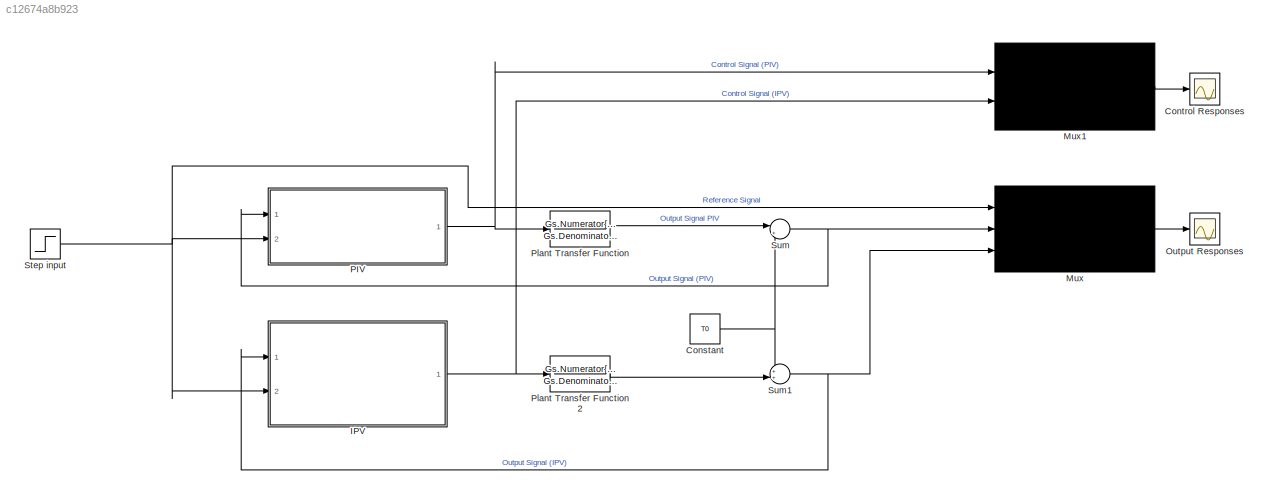
MODEL slx_c12674a8b923
KIND model
CONFIG AbsTol = auto
CONFIG EnableMultiTasking = off
CONFIG FixedStep = auto
CONFIG MaxStep = auto
CONFIG MinStep = auto
CONFIG RelTol = 1e-3
CONFIG SampleTimeConstraint = Unconstrained
CONFIG Solver = VariableStepAuto
CONFIG SolverName = VariableStepAuto
CONFIG StartTime = 0.0
CONFIG StopTime = simulation_time
BLOCK [Constant] Constant
  Value = T0
BLOCK [Scope] Control Responses
  Floating = off
  NumInputPorts = 1
  Ports = [1]
  ScopeSpecificationString = Simulink.scopes.TimeScopeBlockCfg('CurrentConfiguration', extmgr.ConfigurationSet(extmgr.Configuration('Core','General UI',true),extmgr.Configuration('Core','Source UI',true),extmgr.Configuration('Sources','WiredSimulink',true,'DataLogging',true,'DataLoggingVariableName','ControlSignal','DataLoggingSaveFormat','StructureWithTime'),extmgr.Configuration('Visuals','Time Domain',true,'SerializedDispla...<+1504ch>
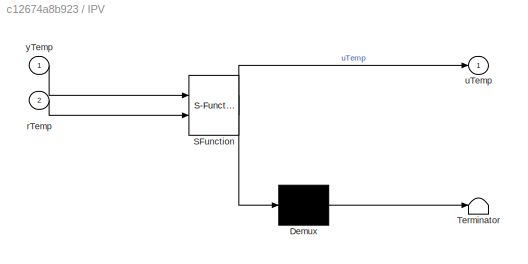
BLOCK [SubSystem] IPV 
  ErrorFcn = Stateflow.Translate.translate
  PermitHierarchicalResolution = ExplicitOnly
  Ports = [2, 1]
  RequestExecContextInheritance = off
  SFBlockType = MATLAB Function
  TreatAsAtomicUnit = on
BLOCK [Demux] IPV / Demux 
  Outputs = 1
  Ports = [1, 1]
BLOCK [S-Function] IPV / SFunction 
  EnableBusSupport = on
  FunctionName = sf_sfun
  Parameters = Kc,Umax,Umin,deltat,tauI
  PortCounts = [2 2]
  Ports = [2, 2]
  SFcnIsStateOwnerBlock = off
  SFunctionDeploymentMode = off
  Tag = Stateflow S-Function 1
BLOCK [Terminator] IPV / Terminator 
BLOCK [Inport] IPV /rTemp
  IconDisplay = Port number
  Port = 2
BLOCK [Outport] IPV /uTemp
  IconDisplay = Port number
BLOCK [Inport] IPV /yTemp
  IconDisplay = Port number
BLOCK [Mux] Mux
  DisplayOption = signals
  Inputs = 3
  Ports = [3, 1]
BLOCK [Mux] Mux1
  DisplayOption = signals
  Inputs = 2
  Ports = [2, 1]
BLOCK [Scope] Output Responses
  Floating = off
  NumInputPorts = 1
  Ports = [1]
  ScopeSpecificationString = Simulink.scopes.TimeScopeBlockCfg('CurrentConfiguration', extmgr.ConfigurationSet(extmgr.Configuration('Core','General UI',true),extmgr.Configuration('Core','Source UI',true),extmgr.Configuration('Sources','WiredSimulink',true,'DataLogging',true,'DataLoggingVariableName','Responses','DataLoggingSaveFormat','StructureWithTime'),extmgr.Configuration('Visuals','Time Domain',true,'SerializedDisplays',...<+1630ch>
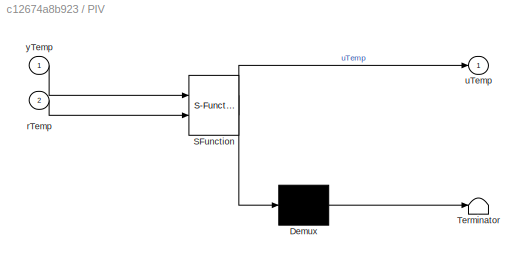
BLOCK [SubSystem] PIV 
  ErrorFcn = Stateflow.Translate.translate
  PermitHierarchicalResolution = ExplicitOnly
  Ports = [2, 1]
  RequestExecContextInheritance = off
  SFBlockType = MATLAB Function
  TreatAsAtomicUnit = on
BLOCK [Demux] PIV / Demux 
  Outputs = 1
  Ports = [1, 1]
BLOCK [S-Function] PIV / SFunction 
  EnableBusSupport = on
  FunctionName = sf_sfun
  Parameters = Kc,Umax,Umin,deltat,tauI
  PortCounts = [2 2]
  Ports = [2, 2]
  SFcnIsStateOwnerBlock = off
  SFunctionDeploymentMode = off
  Tag = Stateflow S-Function 2
BLOCK [Terminator] PIV / Terminator 
BLOCK [Inport] PIV /rTemp
  IconDisplay = Port number
  Port = 2
BLOCK [Outport] PIV /uTemp
  IconDisplay = Port number
BLOCK [Inport] PIV /yTemp
  IconDisplay = Port number
BLOCK [TransferFcn] Plant Transfer Function
  Denominator = Gs.Denominator{1,1}
  Numerator = Gs.Numerator{1,1}
BLOCK [TransferFcn] Plant Transfer Function 2
  Denominator = Gs.Denominator{1,1}
  Numerator = Gs.Numerator{1,1}
BLOCK [Step] Step input
  After = step_amplitude
  SampleTime = sample_time
  Time = 0
BLOCK [Sum] Sum
  IconShape = round
  InputSameDT = off
  Inputs = |++
  OutDataTypeStr = Inherit: Inherit via internal rule
  Ports = [2, 1]
  SaturateOnIntegerOverflow = off
BLOCK [Sum] Sum1
  IconShape = round
  InputSameDT = off
  Inputs = ++|
  OutDataTypeStr = Inherit: Inherit via internal rule
  Ports = [2, 1]
  SaturateOnIntegerOverflow = off
NET Constant:1 -> Sum1:1, Sum:2
NET IPV :1 -> Mux1:2, Plant Transfer Function 2:1
LINE Mux1:1 -> Control Responses:1
LINE Mux:1 -> Output Responses:1
NET PIV :1 -> Mux1:1, Plant Transfer Function:1
LINE Plant Transfer Function 2:1 -> Sum1:2
LINE Plant Transfer Function:1 -> Sum:1
NET Step input:1 -> IPV :2, Mux:1, PIV :2
NET Sum1:1 -> IPV :1, Mux:3
NET Sum:1 -> Mux:2, PIV :1
note: NET lines group one-source signal fan-out (src -> all destinations, sorted); 1:1 wires keep LINE
CHART IPV
 states=1 transitions=1
  STATE_LABEL 'eML_blk_kernel()'
  STATE_LABEL 'SCRIPT:\nfunction uTemp = IPV(yTemp,rTemp,Kc, tauI, deltat, Umin, Umax)\n    persistent uPast \n    if isempty(uPast)\n        uPast=0;\n    end\n    \n    persistent yPast \n    if isempty(yPast)\n        yPast=0; \n    end\n    \n    persistent uDPast \n    if isempty(uDPast)\n        uDPast=0;\n    end\n    \n    persistent rPast \n    if isempty(rPast)\n        rPast=0;\n    end\n   \n    uTemp = uPast+...\n        ...<+230ch>'
CHART PIV
 states=1 transitions=1
  STATE_LABEL 'eML_blk_kernel()'
  STATE_LABEL 'SCRIPT:\nfunction uTemp = PIV(yTemp,rTemp,Kc, tauI, deltat, Umin, Umax)\n    persistent uPast \n    if isempty(uPast)\n        uPast=0;\n    end\n    \n    persistent yPast \n    if isempty(yPast)\n        yPast=0; \n    end\n    \n    persistent uDPast \n    if isempty(uDPast)\n        uDPast=0;\n    end\n    \n    persistent rPast \n    if isempty(rPast)\n        rPast=0;\n    end\n    \n    \n    uTemp=uPast + ...\n  ...<+255ch>'
